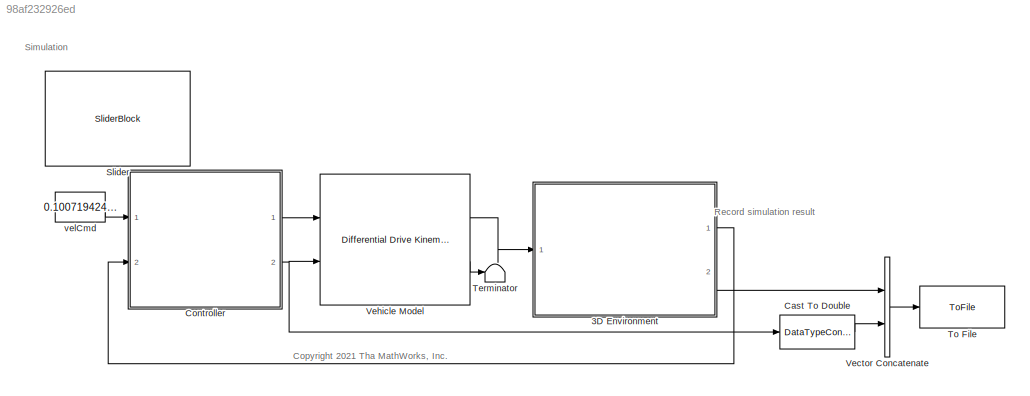
MODEL slx_98af232926ed
KIND model
CONFIG AbsTol = auto
CONFIG EnableMultiTasking = off
CONFIG FixedStep = auto
CONFIG MaxStep = auto
CONFIG MinStep = auto
CONFIG RelTol = 1e-3
CONFIG SampleTimeConstraint = Unconstrained
CONFIG SolverName = VariableStepAuto
CONFIG StartTime = 0.0
CONFIG StopTime = 20
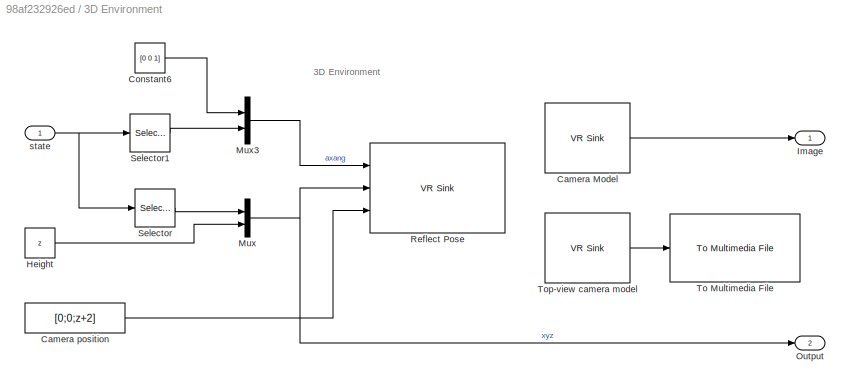
BLOCK [SubSystem] 3D Environment
  Ports = [1, 2]
  RequestExecContextInheritance = off
BLOCK [Reference] 3D Environment/Camera Model  REF=vrlib/VR Sink
  InstantiateOnLoad = on
  Ports = [0, 1]
  SourceBlock = vrlib/VR Sink
  SourceProductBaseCode = SL
  SourceType = Virtual Reality Sink
BLOCK [Constant] 3D Environment/Camera position
  Value = [0;0;z+2]
BLOCK [Constant] 3D Environment/Constant6
  Value = [0 0 1]
BLOCK [Constant] 3D Environment/Height
  Value = z
BLOCK [Outport] 3D Environment/Image
BLOCK [Mux] 3D Environment/Mux
  DisplayOption = bar
  Inputs = 2
  Ports = [2, 1]
BLOCK [Mux] 3D Environment/Mux3
  DisplayOption = bar
  Inputs = 2
  Ports = [2, 1]
BLOCK [Outport] 3D Environment/Output
  Port = 2
BLOCK [Reference] 3D Environment/Reflect Pose  REF=vrlib/VR Sink
  InstantiateOnLoad = on
  Ports = [3]
  SourceBlock = vrlib/VR Sink
  SourceProductBaseCode = SL
  SourceType = Virtual Reality Sink
BLOCK [Selector] 3D Environment/Selector
  IndexOptions = Index vector (dialog)
  Indices = [1 2]
  InputPortWidth = 3
  OutputSizes = 1
  Ports = [1, 1]
BLOCK [Selector] 3D Environment/Selector1
  IndexOptions = Index vector (dialog)
  Indices = 3
  InputPortWidth = 3
  OutputSizes = 1
  Ports = [1, 1]
BLOCK [Reference] 3D Environment/To Multimedia File  REF=dspvision/To Multimedia File
  Commented = on
  Ports = [1]
  SourceBlock = dspvision/To Multimedia File
  SourceProductBaseCode = DS,HW,VP
  SourceType = To Multimedia File
BLOCK [Reference] 3D Environment/Top-view camera model  REF=vrlib/VR Sink
  Commented = on
  InstantiateOnLoad = on
  Ports = [0, 1]
  SourceBlock = vrlib/VR Sink
  SourceProductBaseCode = SL
  SourceType = Virtual Reality Sink
BLOCK [Inport] 3D Environment/state
BLOCK [DataTypeConversion] Cast To Double
  OutDataTypeStr = double
  RndMeth = Floor
  SaturateOnIntegerOverflow = off
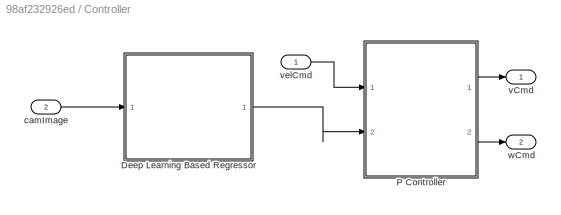
BLOCK [SubSystem] Controller
  Ports = [2, 2]
  RequestExecContextInheritance = off
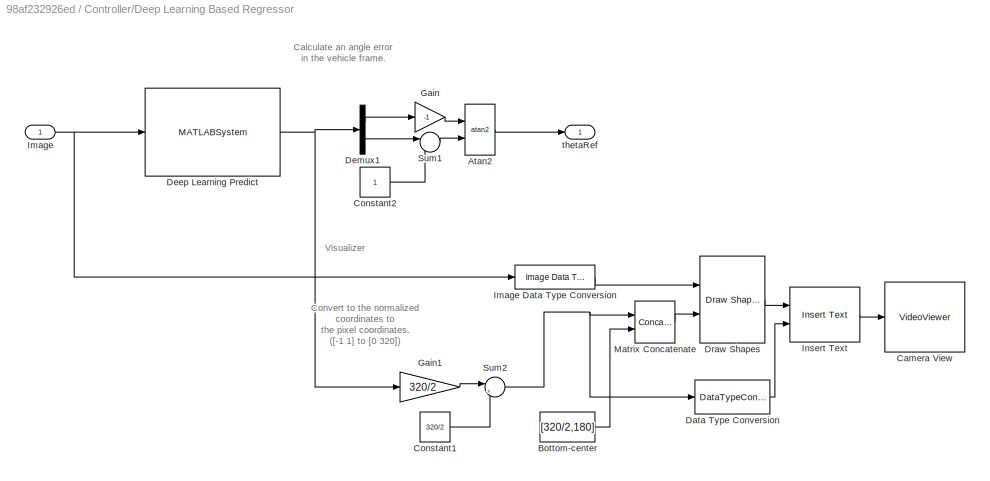
BLOCK [SubSystem] Controller/Deep Learning Based Regressor
  Ports = [1, 1]
  RequestExecContextInheritance = off
BLOCK [Trigonometry] Controller/Deep Learning Based Regressor/Atan2
  Operator = atan2
  Ports = [2, 1]
BLOCK [Constant] Controller/Deep Learning Based Regressor/Bottom-center
  Value = [320/2,180]
  VectorParams1D = off
BLOCK [VideoViewer] Controller/Deep Learning Based Regressor/Camera View
  FigPos = [1066.6 467.6 460 294.4]
  Ports = [1]
  ScopeSpecificationString = vipscopes.VideoViewerScopeCfg('CurrentConfiguration', extmgr.ConfigurationSet(extmgr.Configuration('Core','General UI',true,'ShowMainToolbar',false,'ShowPlaybackToolbar',false,'ShowStatusbar',false),extmgr.Configuration('Core','Source UI',true),extmgr.Configuration('Sources','WiredSimulink',true),extmgr.Configuration('Visuals','Video',true),extmgr.Configuration('Tools','Image Navigation Tools',tru...<+182ch>
  colormapValue = gray(256)
BLOCK [Constant] Controller/Deep Learning Based Regressor/Constant1
  Value = 320/2
BLOCK [Constant] Controller/Deep Learning Based Regressor/Constant2
  OutDataTypeStr = single
BLOCK [DataTypeConversion] Controller/Deep Learning Based Regressor/Data Type Conversion
  OutDataTypeStr = int32
  RndMeth = Floor
  SaturateOnIntegerOverflow = off
BLOCK [MATLABSystem] Controller/Deep Learning Based Regressor/Deep Learning Predict
  MATFile = mynet_new.mat
  MaskDisplay = disp('myPredict');\nport_label('input',1,'u');\nport_label('output',1,'y');
  MaskType = myPredict
  Ports = [1, 1]
  System = myPredict
BLOCK [Demux] Controller/Deep Learning Based Regressor/Demux1
  Outputs = 2
  Ports = [1, 2]
BLOCK [Reference] Controller/Deep Learning Based Regressor/Draw Shapes  REF=visiontextngfix/Draw Shapes
  Ports = [2, 1]
  SourceBlock = visiontextngfix/Draw Shapes
  SourceProductBaseCode = VP
  SourceType = Draw Shapes
BLOCK [Gain] Controller/Deep Learning Based Regressor/Gain
  Gain = -1
BLOCK [Gain] Controller/Deep Learning Based Regressor/Gain1
  Gain = 320/2
BLOCK [Inport] Controller/Deep Learning Based Regressor/Image
BLOCK [Reference] Controller/Deep Learning Based Regressor/Image Data Type Conversion  REF=visionconversions/Image Data Type
Conversion
  Ports = [1, 1]
  SourceBlock = visionconversions/Image Data Type\nConversion
  SourceProductBaseCode = VP
  SourceType = Image Data Type Conversion
BLOCK [Reference] Controller/Deep Learning Based Regressor/Insert Text  REF=visiontextngfix/Insert Text
  Ports = [2, 1]
  SourceBlock = visiontextngfix/Insert Text
  SourceProductBaseCode = VP
  SourceType = Insert Text
BLOCK [Concatenate] Controller/Deep Learning Based Regressor/Matrix Concatenate
  ConcatenateDimension = 2
  Mode = Multidimensional array
  Ports = [2, 1]
BLOCK [Sum] Controller/Deep Learning Based Regressor/Sum1
  Inputs = |-+
  Ports = [2, 1]
BLOCK [Sum] Controller/Deep Learning Based Regressor/Sum2
  Inputs = |++
  Ports = [2, 1]
BLOCK [Outport] Controller/Deep Learning Based Regressor/thetaRef
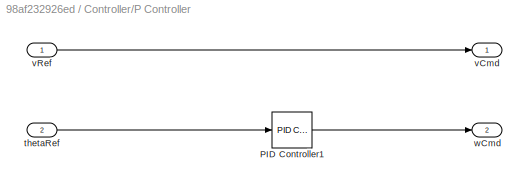
BLOCK [SubSystem] Controller/P Controller
  Ports = [2, 2]
  RequestExecContextInheritance = off
BLOCK [Reference] Controller/P Controller/PID Controller1  REF=slpidlib/PID Controller
  Ports = [1, 1]
  SourceBlock = slpidlib/PID Controller
  SourceProductBaseCode = SL
  SourceType = PID 1dof
BLOCK [Inport] Controller/P Controller/thetaRef
  Port = 2
BLOCK [Outport] Controller/P Controller/vCmd
BLOCK [Inport] Controller/P Controller/vRef
BLOCK [Outport] Controller/P Controller/wCmd
  Port = 2
BLOCK [Inport] Controller/camImage
  Port = 2
BLOCK [Outport] Controller/vCmd
BLOCK [Inport] Controller/velCmd
BLOCK [Outport] Controller/wCmd
  Port = 2
BLOCK [SliderBlock] Slider
  ScaleMax = 1
BLOCK [Terminator] Terminator
BLOCK [ToFile] To File
  Filename = simulation_result
  MatrixName = simulation_result
  Ports = [1]
  SaveFormat = Timeseries
BLOCK [Concatenate] Vector Concatenate
  Ports = [2, 1]
BLOCK [Reference] Vehicle Model  REF=robotmobilelib/Differential Drive Kinematic Model
  Ports = [2, 2]
  SourceBlock = robotmobilelib/Differential Drive Kinematic Model
  SourceProductBaseCode = RO
  SourceType = Differential Drive Kinematic Model
BLOCK [Constant] velCmd
  SampleTime = -1
  Value = 0.1007194244604317
ANNOTATION (root): <copyright redacted>
ANNOTATION (root): Record simulation result
ANNOTATION (root): Simulation
ANNOTATION 3D Environment: 3D Environment
ANNOTATION Controller/Deep Learning Based Regressor: Calculate an angle error in the vehicle frame.
ANNOTATION Controller/Deep Learning Based Regressor: Convert to the normalized coordinates to the pixel coordinates. ([-1 1] to [0 320])
ANNOTATION Controller/Deep Learning Based Regressor: Visualizer
LINE 3D Environment/Camera Model:1 -> 3D Environment/Image:1
LINE 3D Environment/Camera position:1 -> 3D Environment/Reflect Pose:3
LINE 3D Environment/Constant6:1 -> 3D Environment/Mux3:1
LINE 3D Environment/Height:1 -> 3D Environment/Mux:2
LINE 3D Environment/Mux3:1 -> 3D Environment/Reflect Pose:1
NET 3D Environment/Mux:1 -> 3D Environment/Output:1, 3D Environment/Reflect Pose:2
LINE 3D Environment/Selector1:1 -> 3D Environment/Mux3:2
LINE 3D Environment/Selector:1 -> 3D Environment/Mux:1
LINE 3D Environment/Top-view camera model:1 -> 3D Environment/To Multimedia File:1
NET 3D Environment/state:1 -> 3D Environment/Selector1:1, 3D Environment/Selector:1
LINE 3D Environment:1 -> Controller:2
LINE 3D Environment:2 -> Vector Concatenate:1
LINE Cast To Double:1 -> Vector Concatenate:2
LINE Controller/Deep Learning Based Regressor/Atan2:1 -> Controller/Deep Learning Based Regressor/thetaRef:1
LINE Controller/Deep Learning Based Regressor/Bottom-center:1 -> Controller/Deep Learning Based Regressor/Matrix Concatenate:2
LINE Controller/Deep Learning Based Regressor/Constant1:1 -> Controller/Deep Learning Based Regressor/Sum2:2
LINE Controller/Deep Learning Based Regressor/Constant2:1 -> Controller/Deep Learning Based Regressor/Sum1:2
LINE Controller/Deep Learning Based Regressor/Data Type Conversion:1 -> Controller/Deep Learning Based Regressor/Insert Text:2
NET Controller/Deep Learning Based Regressor/Deep Learning Predict:1 -> Controller/Deep Learning Based Regressor/Demux1:1, Controller/Deep Learning Based Regressor/Gain1:1
LINE Controller/Deep Learning Based Regressor/Demux1:1 -> Controller/Deep Learning Based Regressor/Gain:1
LINE Controller/Deep Learning Based Regressor/Demux1:2 -> Controller/Deep Learning Based Regressor/Sum1:1
LINE Controller/Deep Learning Based Regressor/Draw Shapes:1 -> Controller/Deep Learning Based Regressor/Insert Text:1
LINE Controller/Deep Learning Based Regressor/Gain1:1 -> Controller/Deep Learning Based Regressor/Sum2:1
LINE Controller/Deep Learning Based Regressor/Gain:1 -> Controller/Deep Learning Based Regressor/Atan2:1
LINE Controller/Deep Learning Based Regressor/Image Data Type Conversion:1 -> Controller/Deep Learning Based Regressor/Draw Shapes:1
NET Controller/Deep Learning Based Regressor/Image:1 -> Controller/Deep Learning Based Regressor/Deep Learning Predict:1, Controller/Deep Learning Based Regressor/Image Data Type Conversion:1
LINE Controller/Deep Learning Based Regressor/Insert Text:1 -> Controller/Deep Learning Based Regressor/Camera View:1
LINE Controller/Deep Learning Based Regressor/Matrix Concatenate:1 -> Controller/Deep Learning Based Regressor/Draw Shapes:2
LINE Controller/Deep Learning Based Regressor/Sum1:1 -> Controller/Deep Learning Based Regressor/Atan2:2
NET Controller/Deep Learning Based Regressor/Sum2:1 -> Controller/Deep Learning Based Regressor/Data Type Conversion:1, Controller/Deep Learning Based Regressor/Matrix Concatenate:1
LINE Controller/Deep Learning Based Regressor:1 -> Controller/P Controller:2
LINE Controller/P Controller/PID Controller1:1 -> Controller/P Controller/wCmd:1
LINE Controller/P Controller/thetaRef:1 -> Controller/P Controller/PID Controller1:1
LINE Controller/P Controller/vRef:1 -> Controller/P Controller/vCmd:1
LINE Controller/P Controller:1 -> Controller/vCmd:1
LINE Controller/P Controller:2 -> Controller/wCmd:1
LINE Controller/camImage:1 -> Controller/Deep Learning Based Regressor:1
LINE Controller/velCmd:1 -> Controller/P Controller:1
LINE Controller:1 -> Vehicle Model:1
NET Controller:2 -> Cast To Double:1, Vehicle Model:2
LINE Vector Concatenate:1 -> To File:1
LINE Vehicle Model:1 -> 3D Environment:1
LINE Vehicle Model:2 -> Terminator:1
LINE velCmd:1 -> Controller:1
note: NET lines group one-source signal fan-out (src -> all destinations, sorted); 1:1 wires keep LINE
